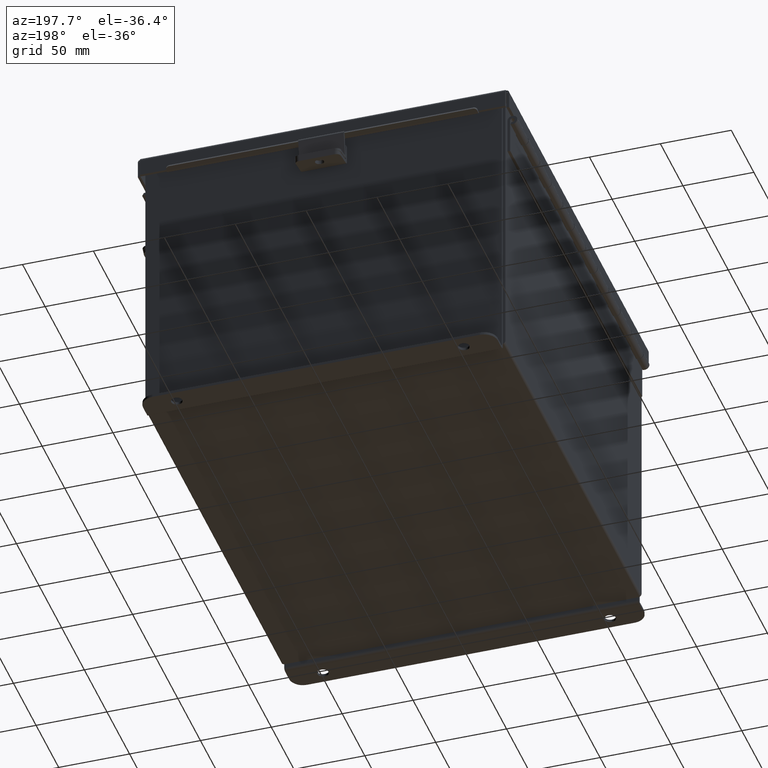
[diagram: clean part render]
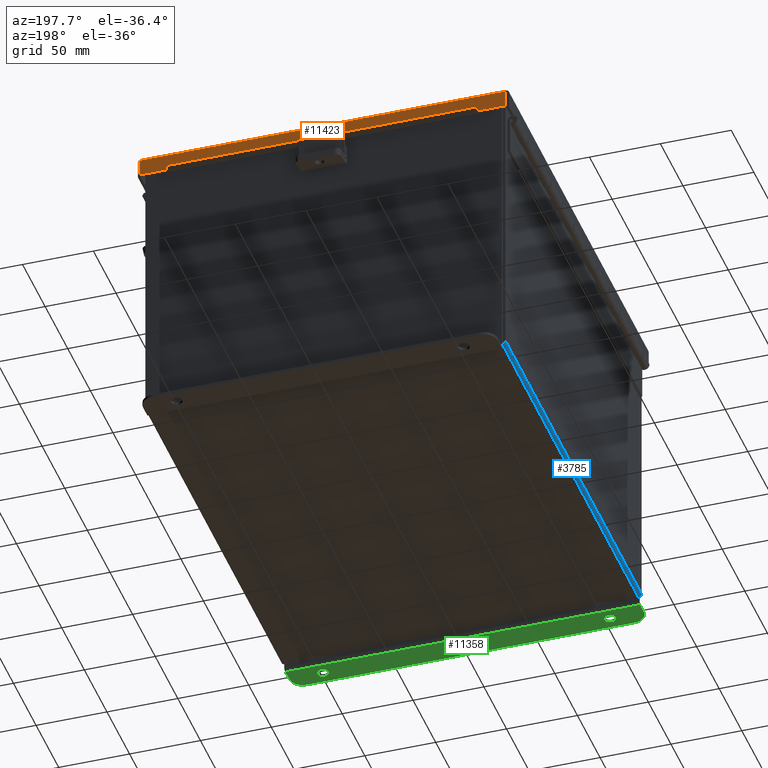
[diagram: same view with three faces highlighted in distinct colors, each labeled with its STEP entity id]
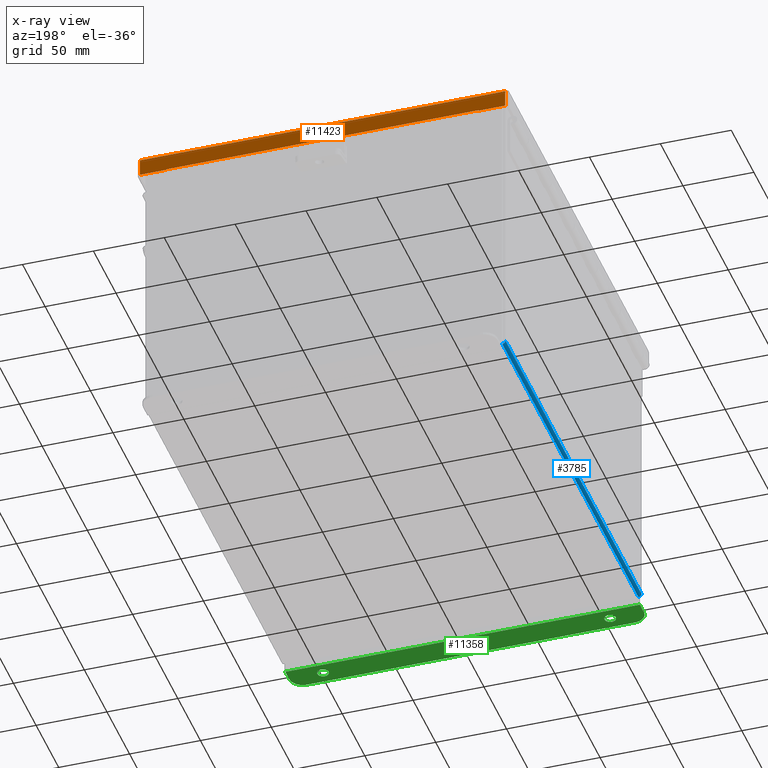
[diagram: x-ray of the same camera — body ghosted, the three highlighted faces saturated]
A machine part, auxiliary view with three faces highlighted in distinct colors.
The next image is the same camera in x-ray (body ghosted, the three faces saturated) — at least one of them is partly hidden behind the body in this view.
Their STEP definitions:

[orange] entity #11423 — the highlighted planar face has unit normal (-0, -1, -0).
#151 = VECTOR ( 'NONE', #1554, 39.37007874015748100 ) ;
#1031 = LINE ( 'NONE', #7024, #151 ) ;
#1077 = VERTEX_POINT ( 'NONE', #16583 ) ;
#1265 = DIRECTION ( 'NONE',  ( 1.000000000000000000, 5.473822126268817900E-048, 6.622661802822457500E-018 ) ) ;
#1371 = VECTOR ( 'NONE', #2418, 39.37007874015748100 ) ;
#1474 = ORIENTED_EDGE ( 'NONE', *, *, #13048, .F. ) ;
#1554 = DIRECTION ( 'NONE',  ( 0.0000000000000000000, 0.0000000000000000000, 1.000000000000000000 ) ) ;
#2418 = DIRECTION ( 'NONE',  ( 0.0000000000000000000, 0.0000000000000000000, -1.000000000000000000 ) ) ;
#2568 = CARTESIAN_POINT ( 'NONE',  ( 5.074478932188135600, 6.156250000000000900, 0.01299999999999977400 ) ) ;
#3376 = ORIENTED_EDGE ( 'NONE', *, *, #4470, .F. ) ;
#3438 = VERTEX_POINT ( 'NONE', #16343 ) ;
#3669 = DIRECTION ( 'NONE',  ( 0.0000000000000000000, 4.484872552701437000E-015, 1.000000000000000000 ) ) ;
#3818 = ORIENTED_EDGE ( 'NONE', *, *, #16945, .F. ) ;
#4271 = DIRECTION ( 'NONE',  ( -0.0000000000000000000, 4.484872552701437000E-015, 1.000000000000000000 ) ) ;
#4470 = EDGE_CURVE ( 'NONE', #1077, #17675, #15921, .T. ) ;
#4600 = EDGE_CURVE ( 'NONE', #1077, #10612, #13767, .T. ) ;
#5114 = DIRECTION ( 'NONE',  ( 1.000000000000000000, -2.970179414530265500E-032, 1.300837525747178200E-046 ) ) ;
#5206 = DIRECTION ( 'NONE',  ( -2.970179414530265500E-032, -1.000000000000000000, 4.484872552701437000E-015 ) ) ;
#6158 = VECTOR ( 'NONE', #8233, 39.37007874015748100 ) ;
#6702 = CARTESIAN_POINT ( 'NONE',  ( 1.260358767695141600E-017, 6.156250000000003600, 0.4872999999999997900 ) ) ;
#7024 = CARTESIAN_POINT ( 'NONE',  ( -4.324478932188135600, 6.156250000000003600, 0.4717115427318791500 ) ) ;
#7631 = VERTEX_POINT ( 'NONE', #13082 ) ;
#7729 = VERTEX_POINT ( 'NONE', #7804 ) ;
#7751 = CARTESIAN_POINT ( 'NONE',  ( -5.074478932188134700, 6.156250000000000900, -2.787081030857980700E-014 ) ) ;
#7804 = CARTESIAN_POINT ( 'NONE',  ( -5.074478932188135600, 6.156250000000000900, 0.01299999999999978100 ) ) ;
#7920 = EDGE_CURVE ( 'NONE', #11286, #7631, #15203, .T. ) ;
#8003 = CARTESIAN_POINT ( 'NONE',  ( 1.583081077346698300E-017, 6.156250000000000900, -2.787081030857980700E-014 ) ) ;
#8233 = DIRECTION ( 'NONE',  ( -1.000000000000000000, -0.0000000000000000000, -0.0000000000000000000 ) ) ;
#8468 = FACE_OUTER_BOUND ( 'NONE', #12294, .T. ) ;
#8741 = LINE ( 'NONE', #11969, #12366 ) ;
#8842 = ORIENTED_EDGE ( 'NONE', *, *, #4600, .T. ) ;
#8916 = VERTEX_POINT ( 'NONE', #2568 ) ;
#9186 = CARTESIAN_POINT ( 'NONE',  ( 4.324478932188136500, 6.156250000000003600, 0.4872999999999991800 ) ) ;
#9385 = PLANE ( 'NONE',  #14846 ) ;
#9777 = LINE ( 'NONE', #12306, #6158 ) ;
#10022 = VECTOR ( 'NONE', #3669, 39.37007874015748100 ) ;
#10160 = EDGE_CURVE ( 'NONE', #7729, #11286, #13252, .T. ) ;
#10175 = ORIENTED_EDGE ( 'NONE', *, *, #12429, .F. ) ;
#10258 = EDGE_CURVE ( 'NONE', #7729, #8916, #8741, .T. ) ;
#10612 = VERTEX_POINT ( 'NONE', #12678 ) ;
#10735 = DIRECTION ( 'NONE',  ( 0.0000000000000000000, -4.484872552701437000E-015, -1.000000000000000000 ) ) ;
#11013 = ORIENTED_EDGE ( 'NONE', *, *, #10258, .F. ) ;
#11092 = CARTESIAN_POINT ( 'NONE',  ( 5.074478932188136500, 6.156250000000000900, -3.350199796867980800E-016 ) ) ;
#11286 = VERTEX_POINT ( 'NONE', #14524 ) ;
#11423 = ADVANCED_FACE ( 'NONE', ( #8468 ), #9385, .F. ) ;
#11610 = VECTOR ( 'NONE', #1265, 39.37007874015748100 ) ;
#11969 = CARTESIAN_POINT ( 'NONE',  ( 5.156250000000000900, 6.156250000000000900, 0.01299999999999978100 ) ) ;
#12294 = EDGE_LOOP ( 'NONE', ( #3376, #8842, #3818, #11013, #12712, #14717, #10175, #1474 ) ) ;
#12306 = CARTESIAN_POINT ( 'NONE',  ( 4.324478932188136500, 6.156250000000003600, 0.4717115427318791500 ) ) ;
#12366 = VECTOR ( 'NONE', #5114, 39.37007874015748100 ) ;
#12429 = EDGE_CURVE ( 'NONE', #3438, #7631, #1031, .T. ) ;
#12678 = CARTESIAN_POINT ( 'NONE',  ( 5.074478932188136500, 6.156250000000003600, 0.4872999999999997900 ) ) ;
#12712 = ORIENTED_EDGE ( 'NONE', *, *, #10160, .T. ) ;
#12892 = DIRECTION ( 'NONE',  ( 1.000000000000000000, 5.473822126268817900E-048, 6.622661802822457500E-018 ) ) ;
#13029 = CARTESIAN_POINT ( 'NONE',  ( 1.260358767695141600E-017, 6.156250000000003600, 0.4872999999999997900 ) ) ;
#13048 = EDGE_CURVE ( 'NONE', #17675, #3438, #9777, .T. ) ;
#13082 = CARTESIAN_POINT ( 'NONE',  ( -4.324478932188134700, 6.156250000000003600, 0.4872999999999997900 ) ) ;
#13252 = LINE ( 'NONE', #7751, #10022 ) ;
#13767 = LINE ( 'NONE', #13029, #17411 ) ;
#14065 = LINE ( 'NONE', #11092, #17304 ) ;
#14524 = CARTESIAN_POINT ( 'NONE',  ( -5.074478932188135600, 6.156250000000003600, 0.4872999999999997300 ) ) ;
#14717 = ORIENTED_EDGE ( 'NONE', *, *, #7920, .T. ) ;
#14846 = AXIS2_PLACEMENT_3D ( 'NONE', #8003, #5206, #10735 ) ;
#15203 = LINE ( 'NONE', #6702, #11610 ) ;
#15921 = LINE ( 'NONE', #9186, #1371 ) ;
#16112 = CARTESIAN_POINT ( 'NONE',  ( 4.324478932188136500, 6.156250000000003600, 0.4717115427318791500 ) ) ;
#16343 = CARTESIAN_POINT ( 'NONE',  ( -4.324478932188135600, 6.156250000000003600, 0.4717115427318791500 ) ) ;
#16583 = CARTESIAN_POINT ( 'NONE',  ( 4.324478932188136500, 6.156250000000003600, 0.4872999999999997900 ) ) ;
#16945 = EDGE_CURVE ( 'NONE', #8916, #10612, #14065, .T. ) ;
#17304 = VECTOR ( 'NONE', #4271, 39.37007874015748100 ) ;
#17411 = VECTOR ( 'NONE', #12892, 39.37007874015748100 ) ;
#17675 = VERTEX_POINT ( 'NONE', #16112 ) ;

[blue] entity #3785 — the highlighted cylindrical surface (edge-blend (fillet) strip) has radius 2.2276 mm, axis along (0, -1, 0).
#626 = CARTESIAN_POINT ( 'NONE',  ( -4.912300000000000100, 5.925300000000000000, -0.07470000000000000300 ) ) ;
#1615 = CIRCLE ( 'NONE', #16714, 0.08770000000000009700 ) ;
#2222 = ORIENTED_EDGE ( 'NONE', *, *, #11446, .F. ) ;
#2878 = VERTEX_POINT ( 'NONE', #626 ) ;
#3139 = ORIENTED_EDGE ( 'NONE', *, *, #8559, .T. ) ;
#3523 = ORIENTED_EDGE ( 'NONE', *, *, #12693, .F. ) ;
#3785 = ADVANCED_FACE ( 'NONE', ( #8034 ), #6756, .T. ) ;
#3874 = CARTESIAN_POINT ( 'NONE',  ( -5.000000000000000000, 5.925300000000000000, 0.01299999999999984300 ) ) ;
#4017 = LINE ( 'NONE', #4807, #11306 ) ;
#4807 = CARTESIAN_POINT ( 'NONE',  ( -4.912300000000000100, -5.925300000000000000, -0.07469999999999994700 ) ) ;
#5805 = DIRECTION ( 'NONE',  ( -0.0000000000000000000, 1.000000000000000000, -0.0000000000000000000 ) ) ;
#5859 = DIRECTION ( 'NONE',  ( -0.0000000000000000000, 1.000000000000000000, -0.0000000000000000000 ) ) ;
#6236 = CARTESIAN_POINT ( 'NONE',  ( -5.000000000000000000, -5.925299999999999100, 0.01299999999999984300 ) ) ;
#6252 = CARTESIAN_POINT ( 'NONE',  ( -4.912300000000000100, -5.925299999999999100, -0.07469999999999994700 ) ) ;
#6751 = CARTESIAN_POINT ( 'NONE',  ( -4.912300000000000100, -5.925299999999999100, 0.01300000000000015000 ) ) ;
#6756 = CYLINDRICAL_SURFACE ( 'NONE', #15343, 0.08770000000000026400 ) ;
#7142 = EDGE_LOOP ( 'NONE', ( #3523, #2222, #3139, #9046 ) ) ;
#7555 = CARTESIAN_POINT ( 'NONE',  ( -4.912300000000000100, -5.925300000000000000, 0.01300000000000015000 ) ) ;
#8034 = FACE_OUTER_BOUND ( 'NONE', #7142, .T. ) ;
#8126 = DIRECTION ( 'NONE',  ( 0.0000000000000000000, 0.0000000000000000000, -1.000000000000000000 ) ) ;
#8559 = EDGE_CURVE ( 'NONE', #11233, #15009, #14347, .T. ) ;
#9046 = ORIENTED_EDGE ( 'NONE', *, *, #15807, .F. ) ;
#9464 = VERTEX_POINT ( 'NONE', #6252 ) ;
#10384 = DIRECTION ( 'NONE',  ( 0.0000000000000000000, -1.000000000000000000, 0.0000000000000000000 ) ) ;
#11155 = VECTOR ( 'NONE', #5805, 39.37007874015748100 ) ;
#11233 = VERTEX_POINT ( 'NONE', #6236 ) ;
#11306 = VECTOR ( 'NONE', #14341, 39.37007874015748100 ) ;
#11408 = DIRECTION ( 'NONE',  ( -1.000000000000000000, 0.0000000000000000000, -3.480030137311043200E-015 ) ) ;
#11446 = EDGE_CURVE ( 'NONE', #11233, #9464, #1615, .T. ) ;
#12633 = CARTESIAN_POINT ( 'NONE',  ( -5.000000000000000000, 5.925300000000000000, 0.01299999999999984300 ) ) ;
#12693 = EDGE_CURVE ( 'NONE', #9464, #2878, #4017, .T. ) ;
#13459 = AXIS2_PLACEMENT_3D ( 'NONE', #14041, #5859, #15415 ) ;
#13692 = CIRCLE ( 'NONE', #13459, 0.08770000000000009700 ) ;
#14041 = CARTESIAN_POINT ( 'NONE',  ( -4.912300000000000100, 5.925300000000000000, 0.01300000000000015000 ) ) ;
#14341 = DIRECTION ( 'NONE',  ( -0.0000000000000000000, 1.000000000000000000, -0.0000000000000000000 ) ) ;
#14347 = LINE ( 'NONE', #12633, #11155 ) ;
#15009 = VERTEX_POINT ( 'NONE', #3874 ) ;
#15343 = AXIS2_PLACEMENT_3D ( 'NONE', #7555, #10384, #11408 ) ;
#15415 = DIRECTION ( 'NONE',  ( 0.0000000000000000000, 0.0000000000000000000, -1.000000000000000000 ) ) ;
#15807 = EDGE_CURVE ( 'NONE', #2878, #15009, #13692, .T. ) ;
#16299 = DIRECTION ( 'NONE',  ( 0.0000000000000000000, -1.000000000000000000, 0.0000000000000000000 ) ) ;
#16714 = AXIS2_PLACEMENT_3D ( 'NONE', #6751, #16299, #8126 ) ;

[green] entity #11358 — the highlighted planar face has unit normal (0, -0, 1).
#90 = ORIENTED_EDGE ( 'NONE', *, *, #9010, .T. ) ;
#127 = ORIENTED_EDGE ( 'NONE', *, *, #6154, .T. ) ;
#146 = DIRECTION ( 'NONE',  ( 0.0000000000000000000, -3.362274453740631800E-015, -1.000000000000000000 ) ) ;
#175 = VERTEX_POINT ( 'NONE', #9093 ) ;
#291 = VERTEX_POINT ( 'NONE', #6861 ) ;
#515 = LINE ( 'NONE', #2586, #14628 ) ;
#795 = AXIS2_PLACEMENT_3D ( 'NONE', #8360, #146, #9720 ) ;
#854 = AXIS2_PLACEMENT_3D ( 'NONE', #9311, #1112, #10696 ) ;
#874 = DIRECTION ( 'NONE',  ( 0.0000000000000000000, -1.000000000000000000, 4.370956789862820400E-015 ) ) ;
#1112 = DIRECTION ( 'NONE',  ( 0.0000000000000000000, -3.362274453740631800E-015, -1.000000000000000000 ) ) ;
#1325 = DIRECTION ( 'NONE',  ( 0.0000000000000000000, 1.000000000000000000, -3.502369222646487000E-015 ) ) ;
#2481 = FACE_BOUND ( 'NONE', #7532, .T. ) ;
#2525 = DIRECTION ( 'NONE',  ( 4.919856193148104900E-031, 1.000000000000000000, -3.702694488566362300E-015 ) ) ;
#2586 = CARTESIAN_POINT ( 'NONE',  ( -4.925300000000008900, -1.420560956705417000E-014, -4.187000000000000300 ) ) ;
#2692 = CIRCLE ( 'NONE', #795, 0.1560000000000001900 ) ;
#2758 = CIRCLE ( 'NONE', #11160, 0.1560000000000001900 ) ;
#2898 = VERTEX_POINT ( 'NONE', #3165 ) ;
#2924 = VECTOR ( 'NONE', #7735, 39.37007874015748100 ) ;
#3080 = CARTESIAN_POINT ( 'NONE',  ( -3.987800000000000000, 0.3627999999999964600, -4.187000000000005600 ) ) ;
#3157 = ORIENTED_EDGE ( 'NONE', *, *, #11582, .F. ) ;
#3165 = CARTESIAN_POINT ( 'NONE',  ( -3.987800000000000000, 0.2067999999999963200, -4.187000000000004700 ) ) ;
#3229 = EDGE_CURVE ( 'NONE', #14699, #10369, #8057, .T. ) ;
#3357 = LINE ( 'NONE', #17271, #2924 ) ;
#3402 = CARTESIAN_POINT ( 'NONE',  ( 4.925299999999991100, 0.01300000000000885000, -4.187000000000000300 ) ) ;
#3593 = DIRECTION ( 'NONE',  ( -0.0000000000000000000, -3.702694488566362300E-015, -1.000000000000000000 ) ) ;
#3707 = EDGE_CURVE ( 'NONE', #8872, #175, #4402, .T. ) ;
#3831 = VECTOR ( 'NONE', #7548, 39.37007874015748100 ) ;
#4171 = ORIENTED_EDGE ( 'NONE', *, *, #13467, .T. ) ;
#4247 = LINE ( 'NONE', #3402, #3831 ) ;
#4402 = CIRCLE ( 'NONE', #9857, 0.3750000000000000600 ) ;
#4475 = DIRECTION ( 'NONE',  ( 0.0000000000000000000, 1.000000000000000000, -3.502369222646487000E-015 ) ) ;
#4832 = ORIENTED_EDGE ( 'NONE', *, *, #3229, .F. ) ;
#5785 = LINE ( 'NONE', #13673, #15831 ) ;
#5913 = VERTEX_POINT ( 'NONE', #13722 ) ;
#5919 = CARTESIAN_POINT ( 'NONE',  ( 4.550299999999999100, 0.3628000000000085000, -4.187000000000001200 ) ) ;
#6044 = CARTESIAN_POINT ( 'NONE',  ( 3.987799999999999100, 0.5188000000000053700, -4.187000000000001200 ) ) ;
#6122 = FACE_OUTER_BOUND ( 'NONE', #11302, .T. ) ;
#6154 = EDGE_CURVE ( 'NONE', #12278, #12937, #515, .T. ) ;
#6528 = ORIENTED_EDGE ( 'NONE', *, *, #11937, .T. ) ;
#6573 = DIRECTION ( 'NONE',  ( 0.0000000000000000000, -3.362274453740631800E-015, -1.000000000000000000 ) ) ;
#6755 = CARTESIAN_POINT ( 'NONE',  ( 3.987799999999999100, 0.2068000000000050600, -4.187000000000000300 ) ) ;
#6861 = CARTESIAN_POINT ( 'NONE',  ( 4.925299999999991100, 0.01300000000000885000, -4.187000000000000300 ) ) ;
#6934 = ORIENTED_EDGE ( 'NONE', *, *, #16607, .F. ) ;
#7202 = ORIENTED_EDGE ( 'NONE', *, *, #16196, .F. ) ;
#7532 = EDGE_LOOP ( 'NONE', ( #12515, #7202 ) ) ;
#7548 = DIRECTION ( 'NONE',  ( 1.000000000000000000, 4.910036603141682400E-031, -0.0000000000000000000 ) ) ;
#7735 = DIRECTION ( 'NONE',  ( 1.481077795426543600E-015, -1.000000000000000000, 3.702694488566362300E-015 ) ) ;
#7806 = AXIS2_PLACEMENT_3D ( 'NONE', #17260, #9050, #874 ) ;
#8057 = CIRCLE ( 'NONE', #17312, 0.1560000000000001900 ) ;
#8360 = CARTESIAN_POINT ( 'NONE',  ( 3.987799999999999100, 0.3628000000000052300, -4.187000000000001200 ) ) ;
#8466 = AXIS2_PLACEMENT_3D ( 'NONE', #10563, #9207, #13338 ) ;
#8690 = ORIENTED_EDGE ( 'NONE', *, *, #3707, .T. ) ;
#8872 = VERTEX_POINT ( 'NONE', #13378 ) ;
#9010 = EDGE_CURVE ( 'NONE', #12007, #8872, #5785, .T. ) ;
#9050 = DIRECTION ( 'NONE',  ( -0.0000000000000000000, -3.702694488566362300E-015, -1.000000000000000000 ) ) ;
#9093 = CARTESIAN_POINT ( 'NONE',  ( 4.925300000000000000, 0.3628000000000095600, -4.187000000000005600 ) ) ;
#9121 = CARTESIAN_POINT ( 'NONE',  ( -4.550300000000000000, 0.7378000000000000100, -4.187000000000002900 ) ) ;
#9182 = CIRCLE ( 'NONE', #7806, 0.3750000000000000600 ) ;
#9207 = DIRECTION ( 'NONE',  ( 0.0000000000000000000, 3.702694488566362300E-015, 1.000000000000000000 ) ) ;
#9311 = CARTESIAN_POINT ( 'NONE',  ( -3.987800000000000000, 0.3627999999999964600, -4.187000000000005600 ) ) ;
#9319 = FACE_BOUND ( 'NONE', #10893, .T. ) ;
#9720 = DIRECTION ( 'NONE',  ( 0.0000000000000000000, 1.000000000000000000, -3.502369222646487000E-015 ) ) ;
#9857 = AXIS2_PLACEMENT_3D ( 'NONE', #5919, #3593, #10285 ) ;
#10285 = DIRECTION ( 'NONE',  ( 0.0000000000000000000, -1.000000000000000000, 4.370956789862820400E-015 ) ) ;
#10369 = VERTEX_POINT ( 'NONE', #6755 ) ;
#10563 = CARTESIAN_POINT ( 'NONE',  ( -2.035385365534024800E-024, -6.556435184794231700E-015, -4.187000000000000300 ) ) ;
#10696 = DIRECTION ( 'NONE',  ( 0.0000000000000000000, 1.000000000000000000, -3.502369222646487000E-015 ) ) ;
#10893 = EDGE_LOOP ( 'NONE', ( #4832, #3157 ) ) ;
#11160 = AXIS2_PLACEMENT_3D ( 'NONE', #3080, #12665, #4475 ) ;
#11302 = EDGE_LOOP ( 'NONE', ( #127, #6528, #90, #8690, #4171, #6934 ) ) ;
#11358 = ADVANCED_FACE ( 'NONE', ( #2481, #9319, #6122 ), #11965, .F. ) ;
#11582 = EDGE_CURVE ( 'NONE', #10369, #14699, #2692, .T. ) ;
#11937 = EDGE_CURVE ( 'NONE', #12937, #12007, #9182, .T. ) ;
#11965 = PLANE ( 'NONE',  #8466 ) ;
#12007 = VERTEX_POINT ( 'NONE', #9121 ) ;
#12278 = VERTEX_POINT ( 'NONE', #16568 ) ;
#12285 = DIRECTION ( 'NONE',  ( 1.000000000000000000, 4.910036603141682400E-031, 0.0000000000000000000 ) ) ;
#12515 = ORIENTED_EDGE ( 'NONE', *, *, #17000, .F. ) ;
#12665 = DIRECTION ( 'NONE',  ( 0.0000000000000000000, -3.362274453740631800E-015, -1.000000000000000000 ) ) ;
#12937 = VERTEX_POINT ( 'NONE', #17567 ) ;
#13064 = CIRCLE ( 'NONE', #854, 0.1560000000000001900 ) ;
#13338 = DIRECTION ( 'NONE',  ( -4.919856193148104900E-031, -1.000000000000000000, 3.702694488566362300E-015 ) ) ;
#13378 = CARTESIAN_POINT ( 'NONE',  ( 4.550299999999999100, 0.7378000000000086700, -4.187000000000002900 ) ) ;
#13467 = EDGE_CURVE ( 'NONE', #175, #291, #3357, .T. ) ;
#13673 = CARTESIAN_POINT ( 'NONE',  ( -2.035385365534024800E-024, 0.7378000000000011200, -4.187000000000002900 ) ) ;
#13722 = CARTESIAN_POINT ( 'NONE',  ( -3.987800000000000000, 0.5187999999999967100, -4.187000000000005600 ) ) ;
#14628 = VECTOR ( 'NONE', #2525, 39.37007874015748100 ) ;
#14699 = VERTEX_POINT ( 'NONE', #6044 ) ;
#15831 = VECTOR ( 'NONE', #12285, 39.37007874015748100 ) ;
#16196 = EDGE_CURVE ( 'NONE', #2898, #5913, #13064, .T. ) ;
#16351 = CARTESIAN_POINT ( 'NONE',  ( 3.987799999999999100, 0.3628000000000052300, -4.187000000000001200 ) ) ;
#16568 = CARTESIAN_POINT ( 'NONE',  ( -4.925300000000008000, 0.01300000000000120000, -4.187000000000000300 ) ) ;
#16607 = EDGE_CURVE ( 'NONE', #12278, #291, #4247, .T. ) ;
#17000 = EDGE_CURVE ( 'NONE', #5913, #2898, #2758, .T. ) ;
#17260 = CARTESIAN_POINT ( 'NONE',  ( -4.550300000000000000, 0.3627999999999997300, -4.187000000000001200 ) ) ;
#17271 = CARTESIAN_POINT ( 'NONE',  ( 4.925299999999991100, 1.092739197465705300E-015, -4.187000000000000300 ) ) ;
#17312 = AXIS2_PLACEMENT_3D ( 'NONE', #16351, #6573, #1325 ) ;
#17567 = CARTESIAN_POINT ( 'NONE',  ( -4.925300000000000000, 0.3627999999999997300, -4.187000000000005600 ) ) ;